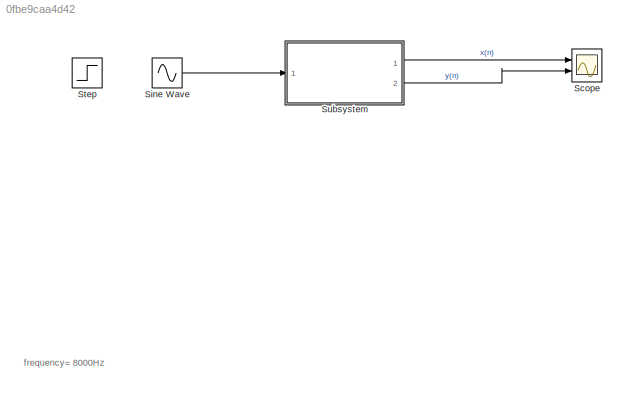
MODEL slx_0fbe9caa4d42
KIND model
CONFIG AbsTol = auto
CONFIG EnableMultiTasking = off
CONFIG FixedStep = auto
CONFIG MaxStep = auto
CONFIG MinStep = auto
CONFIG PreLoadFcn = rad=2*pi
CONFIG RelTol = 1e-3
CONFIG SampleTimeConstraint = Unconstrained
CONFIG SolverName = FixedStepDiscrete
CONFIG StartTime = 0.0
CONFIG StopTime = 10
BLOCK [Scope] Scope
  Floating = off
  NumInputPorts = 2
  Ports = [2]
  ScopeSpecificationString = Simulink.scopes.TimeScopeBlockCfg('CurrentConfiguration', extmgr.ConfigurationSet(extmgr.Configuration('Core','General UI',true),extmgr.Configuration('Core','Source UI',true),extmgr.Configuration('Sources','WiredSimulink',true),extmgr.Configuration('Visuals','Time Domain',true,'SerializedDisplays',{struct('MinYLimReal','-1.08253','MaxYLimReal','1.08253','YLabelReal','','MinYLimMag','0.00000','MaxY...<+2043ch>
BLOCK [Sin] Sine Wave
  Frequency = 8000*rad
  Ports = [0, 1]
  SampleTime = 0
BLOCK [Step] Step
  SampleTime = 0
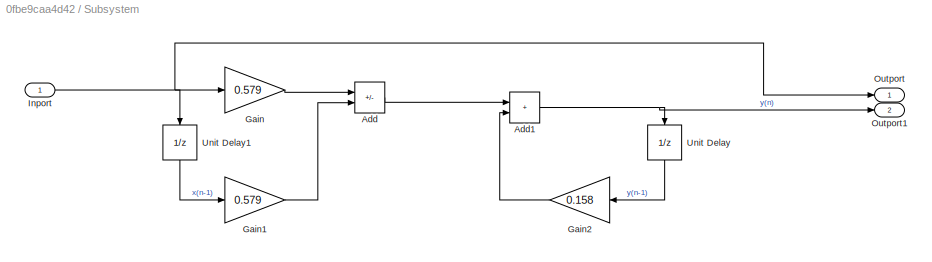
BLOCK [SubSystem] Subsystem
  Ports = [1, 2]
  RequestExecContextInheritance = off
BLOCK [Sum] Subsystem/Add
  IconShape = rectangular
  Inputs = +-
  Ports = [2, 1]
BLOCK [Sum] Subsystem/Add1
  IconShape = rectangular
  Ports = [2, 1]
BLOCK [Gain] Subsystem/Gain
  Gain = 0.579
BLOCK [Gain] Subsystem/Gain1
  Gain = 0.579
BLOCK [Gain] Subsystem/Gain2
  Gain = 0.158
  NameLocation = top
BLOCK [Inport] Subsystem/Inport
BLOCK [Outport] Subsystem/Outport
BLOCK [Outport] Subsystem/Outport1
  Port = 2
BLOCK [UnitDelay] Subsystem/Unit Delay
  HasFrameUpgradeWarning = on
  NameLocation = left
  SampleTime = -1
BLOCK [UnitDelay] Subsystem/Unit Delay1
  HasFrameUpgradeWarning = on
  NameLocation = left
  SampleTime = -1
ANNOTATION (root): frequency= 8000Hz
LINE Sine Wave:1 -> Subsystem:1
NET Subsystem/Add1:1 -> Subsystem/Outport1:1, Subsystem/Unit Delay:1
LINE Subsystem/Add:1 -> Subsystem/Add1:1
LINE Subsystem/Gain1:1 -> Subsystem/Add:2
LINE Subsystem/Gain2:1 -> Subsystem/Add1:2
LINE Subsystem/Gain:1 -> Subsystem/Add:1
NET Subsystem/Inport:1 -> Subsystem/Gain:1, Subsystem/Outport:1, Subsystem/Unit Delay1:1
LINE Subsystem/Unit Delay1:1 -> Subsystem/Gain1:1
LINE Subsystem/Unit Delay:1 -> Subsystem/Gain2:1
LINE Subsystem:1 -> Scope:1
LINE Subsystem:2 -> Scope:2
note: NET lines group one-source signal fan-out (src -> all destinations, sorted); 1:1 wires keep LINE
